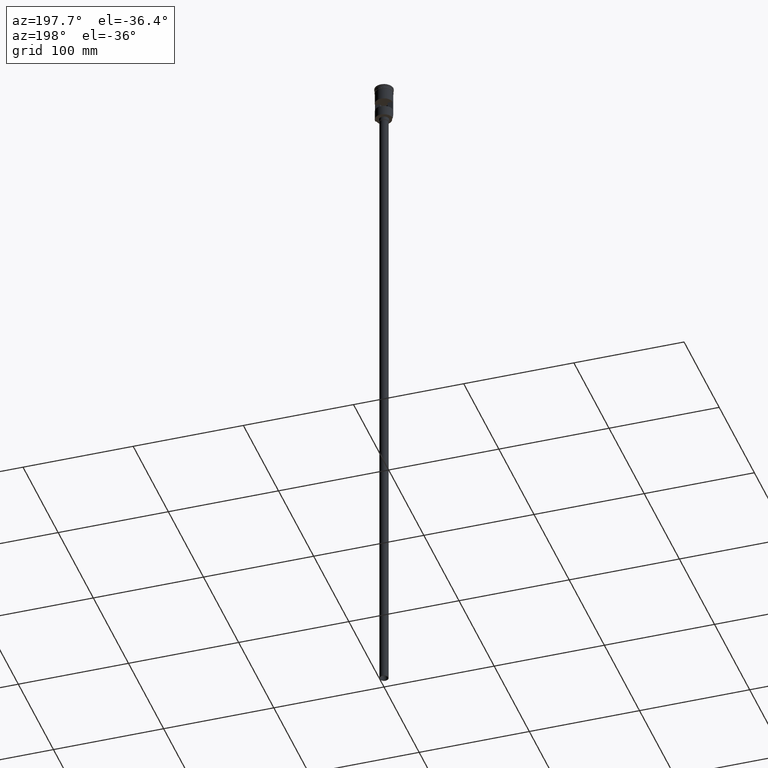
[diagram: clean part render]
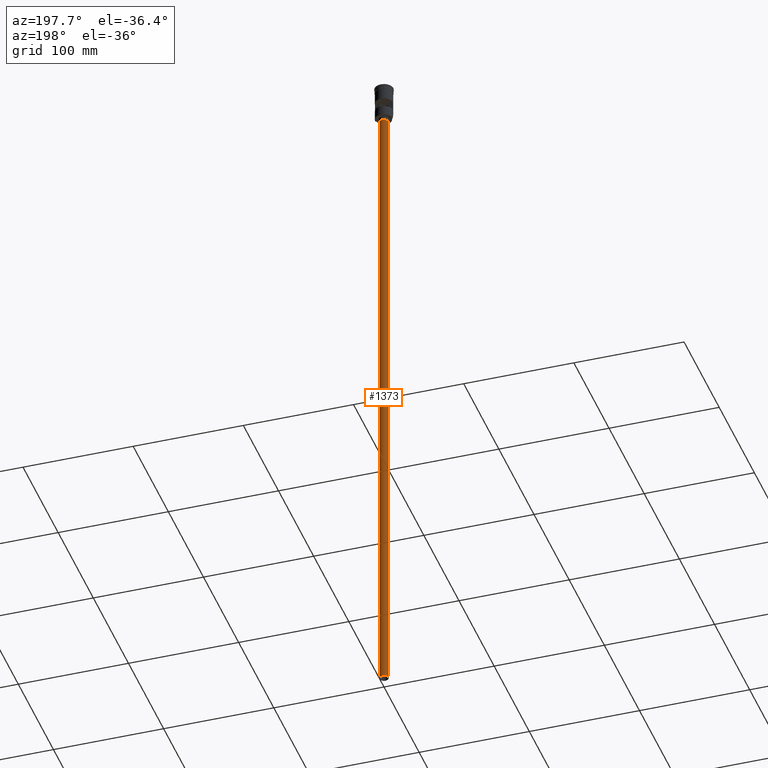
[diagram: same view with one face highlighted and labeled with its STEP entity id]
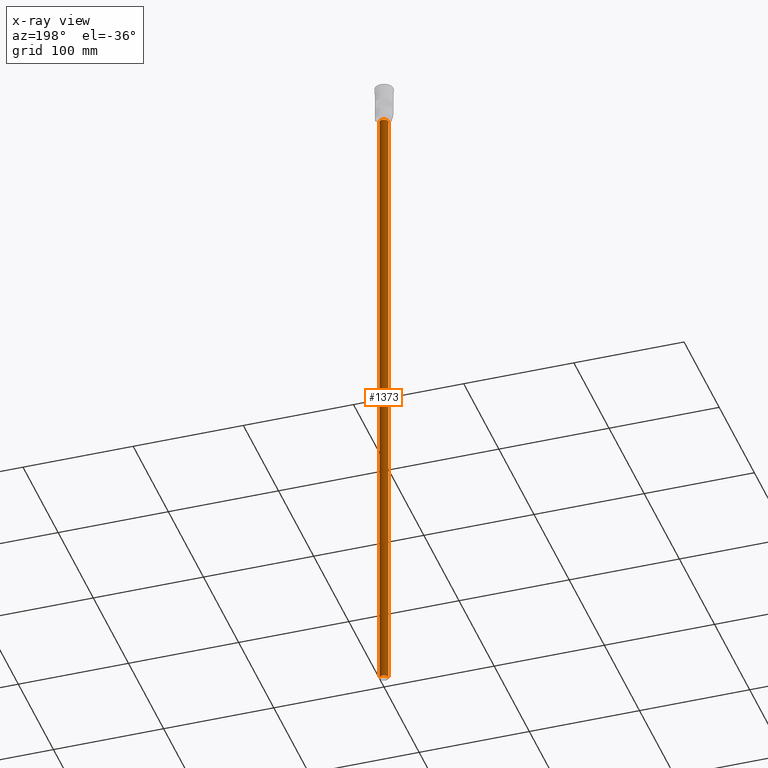
[diagram: x-ray of the same camera — body ghosted, the highlighted face saturated]
A machine part, auxiliary view. The second image highlights one B-rep face of the part: STEP entity #1373.
The next image is the same camera in x-ray: the body ghosted, the highlighted face saturated — about 0% of this face is hidden behind the body in this view.
In plain terms, the highlighted cylindrical surface (edge-blend (fillet) strip) has radius 4 mm, axis along (-0, -0, 1).
Its self-contained STEP definition (entity closure, byte-faithful):
#10 = ORIENTED_EDGE ( 'NONE', *, *, #422, .F. ) ;
#100 = AXIS2_PLACEMENT_3D ( 'NONE', #1269, #259, #513 ) ;
#128 = DIRECTION ( 'NONE',  ( -0.000000000000000000, -0.000000000000000000, 1.000000000000000000 ) ) ;
#198 = CARTESIAN_POINT ( 'NONE',  ( -4.000000000000000000, 4.898587196589412829E-16, -632.0000000000000000 ) ) ;
#259 = DIRECTION ( 'NONE',  ( -0.000000000000000000, -0.000000000000000000, 1.000000000000000000 ) ) ;
#278 = CARTESIAN_POINT ( 'NONE',  ( 0.000000000000000000, 0.000000000000000000, -35.00000000000000000 ) ) ;
#293 = CARTESIAN_POINT ( 'NONE',  ( -4.000000000000000000, 4.898587196589412829E-16, -35.00000000000000000 ) ) ;
#296 = AXIS2_PLACEMENT_3D ( 'NONE', #278, #773, #1270 ) ;
#329 = FACE_OUTER_BOUND ( 'NONE', #669, .T. ) ;
#330 = DIRECTION ( 'NONE',  ( -0.000000000000000000, -0.000000000000000000, 1.000000000000000000 ) ) ;
#381 = CYLINDRICAL_SURFACE ( 'NONE', #100, 4.000000000000000000 ) ;
#422 = EDGE_CURVE ( 'NONE', #1161, #494, #892, .T. ) ;
#494 = VERTEX_POINT ( 'NONE', #1012 ) ;
#500 = LINE ( 'NONE', #993, #575 ) ;
#513 = DIRECTION ( 'NONE',  ( 1.000000000000000000, 0.000000000000000000, 0.000000000000000000 ) ) ;
#519 = CARTESIAN_POINT ( 'NONE',  ( 0.000000000000000000, 0.000000000000000000, -632.0000000000000000 ) ) ;
#575 = VECTOR ( 'NONE', #128, 1000.000000000000000 ) ;
#591 = EDGE_CURVE ( 'NONE', #1161, #1394, #1446, .T. ) ;
#669 = EDGE_LOOP ( 'NONE', ( #10, #1429, #1031, #1341 ) ) ;
#716 = EDGE_CURVE ( 'NONE', #1394, #1094, #1209, .T. ) ;
#773 = DIRECTION ( 'NONE',  ( 0.000000000000000000, 0.000000000000000000, -1.000000000000000000 ) ) ;
#775 = DIRECTION ( 'NONE',  ( -1.000000000000000000, 0.000000000000000000, 0.000000000000000000 ) ) ;
#829 = EDGE_CURVE ( 'NONE', #494, #1094, #500, .T. ) ;
#892 = CIRCLE ( 'NONE', #1304, 4.000000000000000000 ) ;
#896 = DIRECTION ( 'NONE',  ( 0.000000000000000000, 0.000000000000000000, -1.000000000000000000 ) ) ;
#993 = CARTESIAN_POINT ( 'NONE',  ( 4.000000000000000000, 0.000000000000000000, -632.0000000000000000 ) ) ;
#1012 = CARTESIAN_POINT ( 'NONE',  ( 4.000000000000000000, 0.000000000000000000, -632.0000000000000000 ) ) ;
#1027 = CARTESIAN_POINT ( 'NONE',  ( 4.000000000000000000, 0.000000000000000000, -35.00000000000000000 ) ) ;
#1031 = ORIENTED_EDGE ( 'NONE', *, *, #716, .T. ) ;
#1094 = VERTEX_POINT ( 'NONE', #1027 ) ;
#1161 = VERTEX_POINT ( 'NONE', #198 ) ;
#1209 = CIRCLE ( 'NONE', #296, 4.000000000000000000 ) ;
#1256 = VECTOR ( 'NONE', #330, 1000.000000000000000 ) ;
#1269 = CARTESIAN_POINT ( 'NONE',  ( 0.000000000000000000, 0.000000000000000000, -632.0000000000000000 ) ) ;
#1270 = DIRECTION ( 'NONE',  ( -1.000000000000000000, 0.000000000000000000, 0.000000000000000000 ) ) ;
#1304 = AXIS2_PLACEMENT_3D ( 'NONE', #519, #896, #775 ) ;
#1341 = ORIENTED_EDGE ( 'NONE', *, *, #829, .F. ) ;
#1373 = ADVANCED_FACE ( 'NONE', ( #329 ), #381, .T. ) ;
#1394 = VERTEX_POINT ( 'NONE', #293 ) ;
#1429 = ORIENTED_EDGE ( 'NONE', *, *, #591, .T. ) ;
#1446 = LINE ( 'NONE', #1549, #1256 ) ;
#1549 = CARTESIAN_POINT ( 'NONE',  ( -4.000000000000000000, 4.898587196589412829E-16, -632.0000000000000000 ) ) ;